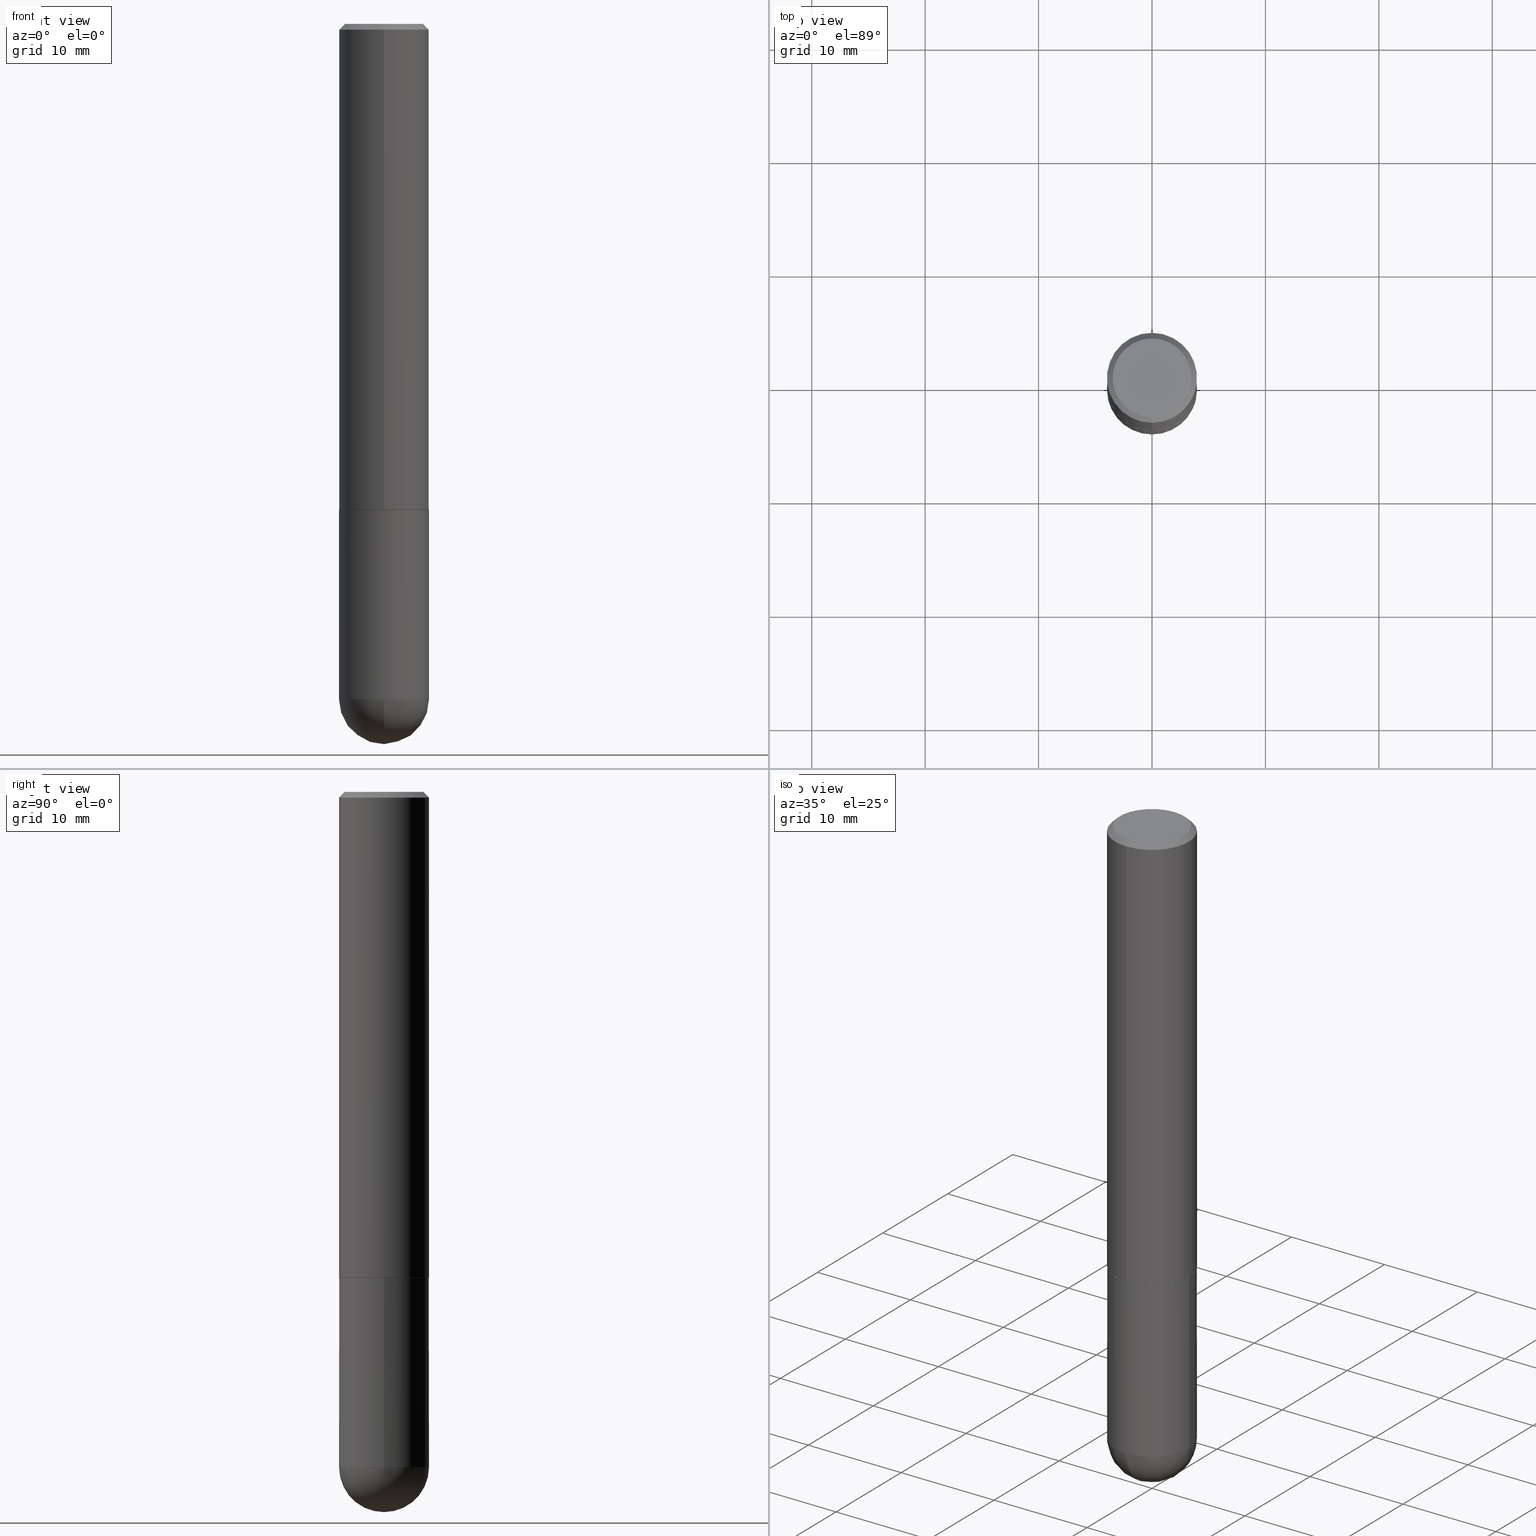
[diagram: canonical four-view strip — front | top / right | iso, engineering-drawing reading convention]
A machine part, canonical four-view strip (front | top / right | iso — engineering-drawing reading convention). The complete STEP part file that produces these views, byte-faithful:
ISO-10303-21;
HEADER;
FILE_DESCRIPTION (( 'STEP AP203' ),
    '1' );
FILE_NAME ('36345.STEP',
    '2024-02-21T18:52:15',
    ( '' ),
    ( '' ),
    'SwSTEP 2.0',
    'SolidWorks 2023',
    '' );
FILE_SCHEMA (( 'CONFIG_CONTROL_DESIGN' ));
ENDSEC;

DATA;
#1 = DIRECTION ( 'NONE',  ( 1.000000000000000000, -6.982962677686269077E-15, 0.000000000000000000 ) ) ;
#2 = VECTOR ( 'NONE', #408, 39.37007874015748143 ) ;
#3 = CIRCLE ( 'NONE', #239, 0.1552499999999999991 ) ;
#4 = PERSON_AND_ORGANIZATION_ROLE ( 'creator' ) ;
#5 = LINE ( 'NONE', #7, #56 ) ;
#6 = CARTESIAN_POINT ( 'NONE',  ( 4.125505876034326327E-29, -5.890129018628388122E-15, -1.687000000000000277 ) ) ;
#7 = CARTESIAN_POINT ( 'NONE',  ( 1.103117597267596553E-15, 0.1552499999999941427, -1.687000000000000943 ) ) ;
#8 = VECTOR ( 'NONE', #211, 39.37007874015748143 ) ;
#9 = CC_DESIGN_APPROVAL ( #16, ( #285 ) ) ;
#10 = CARTESIAN_POINT ( 'NONE',  ( 0.000000000000000000, 0.000000000000000000, 0.000000000000000000 ) ) ;
#11 = CARTESIAN_POINT ( 'NONE',  ( 4.125505876034326327E-29, -5.890129018628388122E-15, -1.687000000000000277 ) ) ;
#12 = DIRECTION ( 'NONE',  ( -6.982962677686265922E-15, -1.000000000000000000, 3.490233802714798958E-15 ) ) ;
#13 = EDGE_LOOP ( 'NONE', ( #250, #93, #341, #132 ) ) ;
#14 = CIRCLE ( 'NONE', #111, 0.1552499999999999991 ) ;
#15 = DIRECTION ( 'NONE',  ( -2.445468806185136597E-29, 3.491481338843145583E-15, 1.000000000000000000 ) ) ;
#16 = APPROVAL ( #215, 'UNSPECIFIED' ) ;
#17 = CARTESIAN_POINT ( 'NONE',  ( -1.071952812151801215E-15, -0.1562500000000000833, -0.01999999999999948694 ) ) ;
#18 = CYLINDRICAL_SURFACE ( 'NONE', #74, 0.1562500000000000000 ) ;
#19 = DIRECTION ( 'NONE',  ( -6.982962677686267499E-15, -1.000000000000000000, 3.490233802714798958E-15 ) ) ;
#20 = CIRCLE ( 'NONE', #188, 0.1562500000000000000 ) ;
#21 = ADVANCED_FACE ( 'NONE', ( #228 ), #94, .T. ) ;
#22 = ORIENTED_EDGE ( 'NONE', *, *, #251, .F. ) ;
#23 = PRODUCT ( '36345', '36345', '', ( #100 ) ) ;
#24 = CARTESIAN_POINT ( 'NONE',  ( -0.1562500000000000000, -5.926421178645850396E-15, -2.343750000000000000 ) ) ;
#25 = VERTEX_POINT ( 'NONE', #202 ) ;
#26 = ORIENTED_EDGE ( 'NONE', *, *, #209, .F. ) ;
#27 = PERSON ( 'UNSPECIFIED', 'UNSPECIFIED', 'UNSPECIFIED', ('UNSPECIFIED'), ('UNSPECIFIED'), ('UNSPECIFIED') ) ;
#28 = EDGE_CURVE ( 'NONE', #200, #314, #173, .T. ) ;
#29 = APPLICATION_PROTOCOL_DEFINITION ( 'international standard', 'config_control_design', 1994, #43 ) ;
#30 = EDGE_LOOP ( 'NONE', ( #300, #412, #130, #401 ) ) ;
#31 = AXIS2_PLACEMENT_3D ( 'NONE', #153, #207, #12 ) ;
#32 = CC_DESIGN_DATE_AND_TIME_ASSIGNMENT ( #259, #102, ( #247 ) ) ;
#33 =( NAMED_UNIT ( * ) SI_UNIT ( $, .STERADIAN. ) SOLID_ANGLE_UNIT ( ) );
#34 = ORIENTED_EDGE ( 'NONE', *, *, #151, .F. ) ;
#35 = CARTESIAN_POINT ( 'NONE',  ( 4.126975505784599064E-29, -5.888024425179867157E-15, -1.687000000000000277 ) ) ;
#36 = PERSON_AND_ORGANIZATION_ROLE ( 'classification_officer' ) ;
#37 = DIRECTION ( 'NONE',  ( -6.982962677686267499E-15, -1.000000000000000000, 3.490233802714798958E-15 ) ) ;
#38 = VECTOR ( 'NONE', #145, 39.37007874015748143 ) ;
#39 = PERSON_AND_ORGANIZATION ( #27, #317 ) ;
#40 = CARTESIAN_POINT ( 'NONE',  ( 4.126975505784599064E-29, -5.888024425179867157E-15, -1.687000000000000277 ) ) ;
#41 = DIRECTION ( 'NONE',  ( -6.982962677686265922E-15, -1.000000000000000000, 3.519288880726909138E-15 ) ) ;
#42 = EDGE_CURVE ( 'NONE', #97, #243, #276, .T. ) ;
#43 = APPLICATION_CONTEXT ( 'configuration controlled 3d designs of mechanical parts and assemblies' ) ;
#44 = SPHERICAL_SURFACE ( 'NONE', #389, 0.1562500000000002498 ) ;
#45 = AXIS2_PLACEMENT_3D ( 'NONE', #139, #266, #294 ) ;
#46 = APPROVAL_PERSON_ORGANIZATION ( #90, #16, #340 ) ;
#47 = CYLINDRICAL_SURFACE ( 'NONE', #269, 0.1562500000000001110 ) ;
#48 = FACE_OUTER_BOUND ( 'NONE', #288, .T. ) ;
#49 = ORIENTED_EDGE ( 'NONE', *, *, #42, .T. ) ;
#50 = DIRECTION ( 'NONE',  ( 6.982962677686265922E-15, 1.000000000000000000, -3.490233802714798958E-15 ) ) ;
#51 = LOCAL_TIME ( 13, 52, 15.00000000000000000, #241 ) ;
#52 = DIRECTION ( 'NONE',  ( -2.446339956007467928E-29, 3.490233802714798564E-15, 1.000000000000000000 ) ) ;
#53 = FACE_OUTER_BOUND ( 'NONE', #13, .T. ) ;
#54 = ADVANCED_FACE ( 'NONE', ( #324 ), #171, .T. ) ;
#55 = ORIENTED_EDGE ( 'NONE', *, *, #365, .F. ) ;
#56 = VECTOR ( 'NONE', #201, 39.37007874015748143 ) ;
#57 = ADVANCED_FACE ( 'NONE', ( #106 ), #44, .T. ) ;
#58 = CARTESIAN_POINT ( 'NONE',  ( 1.110223024625178431E-15, 0.1562499999999943379, -1.686000000000000831 ) ) ;
#59 = ORIENTED_EDGE ( 'NONE', *, *, #332, .T. ) ;
#60 = CARTESIAN_POINT ( 'NONE',  ( 1.091087918388479568E-15, 0.1562499999999999445, -0.02000000000000057981 ) ) ;
#61 = UNCERTAINTY_MEASURE_WITH_UNIT (LENGTH_MEASURE( 1.000000000000000082E-05 ), #155, 'distance_accuracy_value', 'NONE');
#62 = VERTEX_POINT ( 'NONE', #71 ) ;
#63 = EDGE_CURVE ( 'NONE', #187, #349, #5, .T. ) ;
#64 = ORIENTED_EDGE ( 'NONE', *, *, #116, .F. ) ;
#65 = DIRECTION ( 'NONE',  ( -6.982962677686265922E-15, -1.000000000000000000, 3.496765431890251792E-15 ) ) ;
#66 = ORIENTED_EDGE ( 'NONE', *, *, #63, .T. ) ;
#67 = LOCAL_TIME ( 13, 52, 15.00000000000000000, #265 ) ;
#68 = DIRECTION ( 'NONE',  ( 1.000000000000000000, -6.982962677686262766E-15, 0.000000000000000000 ) ) ;
#69 = EDGE_CURVE ( 'NONE', #349, #344, #226, .T. ) ;
#70 = APPROVAL_DATE_TIME ( #227, #369 ) ;
#71 = CARTESIAN_POINT ( 'NONE',  ( 1.091087918388535577E-15, 0.1562499999999916733, -2.343750000000000444 ) ) ;
#72 = EDGE_CURVE ( 'NONE', #25, #125, #296, .T. ) ;
#73 = DIRECTION ( 'NONE',  ( -2.446339956007467928E-29, 3.490233802714798564E-15, 1.000000000000000000 ) ) ;
#74 = AXIS2_PLACEMENT_3D ( 'NONE', #146, #210, #89 ) ;
#75 = DIRECTION ( 'NONE',  ( -2.446339956007467928E-29, 3.490233802714798564E-15, 1.000000000000000000 ) ) ;
#76 = CARTESIAN_POINT ( 'NONE',  ( 3.763361966922717182E-45, -5.369250956535831612E-31, -1.538364264411020755E-16 ) ) ;
#77 = CC_DESIGN_PERSON_AND_ORGANIZATION_ASSIGNMENT ( #196, #345, ( #23 ) ) ;
#78 = CARTESIAN_POINT ( 'NONE',  ( -1.091087918388439336E-15, -0.1562500000000060785, -1.685999999999999721 ) ) ;
#79 = AXIS2_PLACEMENT_3D ( 'NONE', #326, #141, #234 ) ;
#80 = LOCAL_TIME ( 13, 52, 15.00000000000000000, #343 ) ;
#81 = FACE_OUTER_BOUND ( 'NONE', #383, .T. ) ;
#82 = CALENDAR_DATE ( 2024, 21, 2 ) ;
#83 = DIRECTION ( 'NONE',  ( -2.446339956007467928E-29, 3.490233802714798564E-15, 1.000000000000000000 ) ) ;
#84 = CARTESIAN_POINT ( 'NONE',  ( 1.021258291611617256E-15, 0.1362500000000001765, -6.293807820609940159E-16 ) ) ;
#85 = EDGE_LOOP ( 'NONE', ( #258, #55 ) ) ;
#86 = CLOSED_SHELL ( 'NONE', ( #222, #57, #175, #140, #54 ) ) ;
#87 = CONICAL_SURFACE ( 'NONE', #254, 0.1562500000000000000, 0.7853981633974468357 ) ;
#88 = CC_DESIGN_SECURITY_CLASSIFICATION ( #247, ( #240 ) ) ;
#89 = DIRECTION ( 'NONE',  ( 1.000000000000000000, -6.982962677686266711E-15, 4.876176775795936353E-29 ) ) ;
#90 = PERSON_AND_ORGANIZATION ( #27, #317 ) ;
#91 = EDGE_CURVE ( 'NONE', #372, #125, #170, .T. ) ;
#92 = CARTESIAN_POINT ( 'NONE',  ( 4.126975505784599064E-29, -5.888024425179867157E-15, -1.687000000000000277 ) ) ;
#93 = ORIENTED_EDGE ( 'NONE', *, *, #251, .T. ) ;
#94 = CONICAL_SURFACE ( 'NONE', #135, 0.1552499999999999991, 0.7853981633975165577 ) ;
#95 = CALENDAR_DATE ( 2024, 21, 2 ) ;
#96 =( GEOMETRIC_REPRESENTATION_CONTEXT ( 3 ) GLOBAL_UNCERTAINTY_ASSIGNED_CONTEXT ( ( #61 ) ) GLOBAL_UNIT_ASSIGNED_CONTEXT ( ( #155, #220, #33 ) ) REPRESENTATION_CONTEXT ( 'NONE', 'WORKASPACE' ) );
#97 = VERTEX_POINT ( 'NONE', #293 ) ;
#98 = LENGTH_MEASURE_WITH_UNIT ( LENGTH_MEASURE( 0.02539999999999999897 ), #129 );
#99 = EDGE_LOOP ( 'NONE', ( #403, #159 ) ) ;
#100 = MECHANICAL_CONTEXT ( 'NONE', #43, 'mechanical' ) ;
#101 = ORIENTED_EDGE ( 'NONE', *, *, #384, .F. ) ;
#102 = DATE_TIME_ROLE ( 'classification_date' ) ;
#103 = EDGE_LOOP ( 'NONE', ( #197, #380, #378, #156, #26 ) ) ;
#104 = CIRCLE ( 'NONE', #208, 0.1562500000000002220 ) ;
#105 = APPROVAL_DATE_TIME ( #385, #184 ) ;
#106 = FACE_OUTER_BOUND ( 'NONE', #194, .T. ) ;
#107 = CC_DESIGN_PERSON_AND_ORGANIZATION_ASSIGNMENT ( #124, #373, ( #285 ) ) ;
#108 = CARTESIAN_POINT ( 'NONE',  ( -1.084104955710751547E-15, -0.1552500000000058833, -1.686999999999999833 ) ) ;
#109 = EDGE_CURVE ( 'NONE', #219, #393, #218, .T. ) ;
#110 = CARTESIAN_POINT ( 'NONE',  ( 1.091087918388520392E-15, 0.1562499999999941436, -1.687000000000000943 ) ) ;
#111 = AXIS2_PLACEMENT_3D ( 'NONE', #263, #73, #319 ) ;
#112 = DIRECTION ( 'NONE',  ( 2.438088387897960049E-29, -3.491481338843145188E-15, -1.000000000000000000 ) ) ;
#113 = DIRECTION ( 'NONE',  ( 1.000000000000000000, -6.982962677686269077E-15, 0.000000000000000000 ) ) ;
#114 = DIRECTION ( 'NONE',  ( -7.105427357601000281E-15, -1.000000000000000000, 0.000000000000000000 ) ) ;
#115 = AXIS2_PLACEMENT_3D ( 'NONE', #358, #360, #50 ) ;
#116 = EDGE_CURVE ( 'NONE', #314, #344, #213, .T. ) ;
#117 = DIRECTION ( 'NONE',  ( 1.000000000000000000, -6.982962677686265922E-15, 4.883557194083112340E-29 ) ) ;
#118 = DIRECTION ( 'NONE',  ( -4.937700262164884886E-15, -0.7071067811865933139, 0.7071067811865017205 ) ) ;
#119 = ORIENTED_EDGE ( 'NONE', *, *, #69, .F. ) ;
#120 = DIRECTION ( 'NONE',  ( -6.982962677686265922E-15, -1.000000000000000000, 3.490233802714798958E-15 ) ) ;
#121 = DIRECTION ( 'NONE',  ( 2.446339956007467928E-29, -3.490233802714798564E-15, -1.000000000000000000 ) ) ;
#122 = CARTESIAN_POINT ( 'NONE',  ( 0.1562500000000000000, -8.127732121659486109E-15, -2.343750000000000000 ) ) ;
#123 = ORIENTED_EDGE ( 'NONE', *, *, #264, .T. ) ;
#124 = PERSON_AND_ORGANIZATION ( #27, #317 ) ;
#125 = VERTEX_POINT ( 'NONE', #387 ) ;
#126 = AXIS2_PLACEMENT_3D ( 'NONE', #273, #392, #279 ) ;
#127 = DIRECTION ( 'NONE',  ( 0.000000000000000000, 0.000000000000000000, 1.000000000000000000 ) ) ;
#128 = VERTEX_POINT ( 'NONE', #108 ) ;
#129 =( LENGTH_UNIT ( ) NAMED_UNIT ( * ) SI_UNIT ( $, .METRE. ) );
#130 = ORIENTED_EDGE ( 'NONE', *, *, #116, .T. ) ;
#131 = CALENDAR_DATE ( 2024, 21, 2 ) ;
#132 = ORIENTED_EDGE ( 'NONE', *, *, #109, .F. ) ;
#133 = EDGE_CURVE ( 'NONE', #128, #187, #14, .T. ) ;
#134 = PLANE ( 'NONE',  #337 ) ;
#135 = AXIS2_PLACEMENT_3D ( 'NONE', #40, #230, #390 ) ;
#136 = APPROVAL_PERSON_ORGANIZATION ( #168, #184, #229 ) ;
#137 = EDGE_CURVE ( 'NONE', #372, #219, #322, .T. ) ;
#138 = APPROVAL_STATUS ( 'not_yet_approved' ) ;
#139 = CARTESIAN_POINT ( 'NONE',  ( 5.731567514496413899E-29, -8.183159387913622595E-15, -2.343750000000000000 ) ) ;
#140 = ADVANCED_FACE ( 'NONE', ( #268 ), #134, .F. ) ;
#141 = DIRECTION ( 'NONE',  ( -2.446339956007467928E-29, 3.490233802714798564E-15, 1.000000000000000000 ) ) ;
#142 = DIRECTION ( 'NONE',  ( -2.446339956007467928E-29, 3.490233802714798564E-15, 1.000000000000000000 ) ) ;
#143 = VECTOR ( 'NONE', #118, 39.37007874015748143 ) ;
#144 = AXIS2_PLACEMENT_3D ( 'NONE', #377, #121, #199 ) ;
#145 = DIRECTION ( 'NONE',  ( -2.445468806185136877E-29, 3.491481338843145188E-15, 1.000000000000000000 ) ) ;
#146 = CARTESIAN_POINT ( 'NONE',  ( 0.000000000000000000, 0.000000000000000000, 0.000000000000000000 ) ) ;
#147 = CARTESIAN_POINT ( 'NONE',  ( 5.400447736582527652E-29, -8.657341756053672891E-15, -2.343750000000000000 ) ) ;
#148 = ADVANCED_FACE ( 'NONE', ( #272 ), #302, .T. ) ;
#149 = MANIFOLD_SOLID_BREP ( 'Body-Move/Copy2[1]', #86 ) ;
#150 = LINE ( 'NONE', #396, #143 ) ;
#151 = EDGE_CURVE ( 'NONE', #344, #314, #367, .T. ) ;
#152 = CYLINDRICAL_SURFACE ( 'NONE', #261, 0.1562500000000001110 ) ;
#153 = CARTESIAN_POINT ( 'NONE',  ( 4.126975505784599064E-29, -5.888024425179867157E-15, -1.687000000000000277 ) ) ;
#154 = AXIS2_PLACEMENT_3D ( 'NONE', #388, #203, #68 ) ;
#155 =( CONVERSION_BASED_UNIT ( 'INCH', #98 ) LENGTH_UNIT ( ) NAMED_UNIT ( #165 ) );
#156 = ORIENTED_EDGE ( 'NONE', *, *, #195, .T. ) ;
#157 = DATE_AND_TIME ( #309, #271 ) ;
#158 = EDGE_LOOP ( 'NONE', ( #163, #66, #255, #274 ) ) ;
#159 = ORIENTED_EDGE ( 'NONE', *, *, #209, .T. ) ;
#160 = ADVANCED_FACE ( 'NONE', ( #357 ), #152, .T. ) ;
#161 = AXIS2_PLACEMENT_3D ( 'NONE', #172, #142, #270 ) ;
#162 = AXIS2_PLACEMENT_3D ( 'NONE', #405, #216, #65 ) ;
#163 = ORIENTED_EDGE ( 'NONE', *, *, #133, .T. ) ;
#164 = EDGE_LOOP ( 'NONE', ( #123, #260, #217, #363, #59 ) ) ;
#165 = DIMENSIONAL_EXPONENTS ( 1.000000000000000000, 0.000000000000000000, 0.000000000000000000, 0.000000000000000000, 0.000000000000000000, 0.000000000000000000, 0.000000000000000000 ) ;
#166 = COORDINATED_UNIVERSAL_TIME_OFFSET ( 5, 0, .BEHIND. ) ;
#167 = DIRECTION ( 'NONE',  ( 6.982962677686265922E-15, 1.000000000000000000, -3.496765431890251398E-15 ) ) ;
#168 = PERSON_AND_ORGANIZATION ( #27, #317 ) ;
#169 = CIRCLE ( 'NONE', #330, 0.1562500000000002498 ) ;
#170 = LINE ( 'NONE', #297, #38 ) ;
#171 = CYLINDRICAL_SURFACE ( 'NONE', #375, 0.1562500000000000000 ) ;
#172 = CARTESIAN_POINT ( 'NONE',  ( 4.892679912014943914E-31, -6.980467605429607481E-17, -0.02000000000000003511 ) ) ;
#173 = LINE ( 'NONE', #329, #246 ) ;
#174 = AXIS2_PLACEMENT_3D ( 'NONE', #6, #351, #1 ) ;
#175 = ADVANCED_FACE ( 'NONE', ( #53 ), #299, .T. ) ;
#176 = DIRECTION ( 'NONE',  ( -2.446339956007467928E-29, 3.490233802714798564E-15, 1.000000000000000000 ) ) ;
#177 = EDGE_LOOP ( 'NONE', ( #312, #282, #223, #101 ) ) ;
#178 = CARTESIAN_POINT ( 'NONE',  ( 0.000000000000000000, 0.000000000000000000, 0.000000000000000000 ) ) ;
#179 = EDGE_CURVE ( 'NONE', #409, #219, #198, .T. ) ;
#180 = DIRECTION ( 'NONE',  ( -6.982962677686265922E-15, -1.000000000000000000, 3.490233802714798958E-15 ) ) ;
#181 = CIRCLE ( 'NONE', #316, 0.1562500000000000000 ) ;
#182 = ADVANCED_FACE ( 'NONE', ( #301 ), #245, .F. ) ;
#183 = CARTESIAN_POINT ( 'NONE',  ( 0.000000000000000000, 0.000000000000000000, 0.000000000000000000 ) ) ;
#184 = APPROVAL ( #325, 'UNSPECIFIED' ) ;
#185 = CARTESIAN_POINT ( 'NONE',  ( 1.106670310946397846E-15, 0.1552499999999941427, -1.687000000000000943 ) ) ;
#186 = FACE_OUTER_BOUND ( 'NONE', #30, .T. ) ;
#187 = VERTEX_POINT ( 'NONE', #185 ) ;
#188 = AXIS2_PLACEMENT_3D ( 'NONE', #397, #371, #193 ) ;
#189 = CC_DESIGN_APPROVAL ( #369, ( #247 ) ) ;
#190 = CARTESIAN_POINT ( 'NONE',  ( -1.071952812151801215E-15, -0.1562500000000000833, -0.01999999999999948694 ) ) ;
#191 = ADVANCED_FACE ( 'NONE', ( #48 ), #87, .T. ) ;
#192 = ORIENTED_EDGE ( 'NONE', *, *, #137, .F. ) ;
#193 = DIRECTION ( 'NONE',  ( 1.000000000000000000, -6.982962677686262766E-15, 0.000000000000000000 ) ) ;
#194 = EDGE_LOOP ( 'NONE', ( #22, #277, #192, #290 ) ) ;
#195 = EDGE_CURVE ( 'NONE', #393, #25, #275, .T. ) ;
#196 = PERSON_AND_ORGANIZATION ( #27, #317 ) ;
#197 = ORIENTED_EDGE ( 'NONE', *, *, #91, .F. ) ;
#198 = CIRCLE ( 'NONE', #291, 0.1562500000000002498 ) ;
#199 = DIRECTION ( 'NONE',  ( 6.982962677686265133E-15, 1.000000000000000000, -3.496765431890256920E-15 ) ) ;
#200 = VERTEX_POINT ( 'NONE', #78 ) ;
#201 = DIRECTION ( 'NONE',  ( 5.024295867788404755E-15, 0.7071067811865981989, 0.7071067811864968355 ) ) ;
#202 = CARTESIAN_POINT ( 'NONE',  ( 0.1562500000000000000, -6.981216937016868084E-15, -1.687000000000000277 ) ) ;
#203 = DIRECTION ( 'NONE',  ( -2.445468806185136597E-29, 3.491481338843145583E-15, 1.000000000000000000 ) ) ;
#204 = ADVANCED_BREP_SHAPE_REPRESENTATION ( '36345', ( #149, #280, #233 ), #96 ) ;
#205 = DIRECTION ( 'NONE',  ( -1.000000000000000000, 6.982962677686265922E-15, -4.883557194083112340E-29 ) ) ;
#206 = DIRECTION ( 'NONE',  ( -2.446339956007467648E-29, 3.490233802714798958E-15, 1.000000000000000000 ) ) ;
#207 = DIRECTION ( 'NONE',  ( -2.446339956007467368E-29, 3.490233802714798958E-15, 1.000000000000000000 ) ) ;
#208 = AXIS2_PLACEMENT_3D ( 'NONE', #336, #52, #303 ) ;
#209 = EDGE_CURVE ( 'NONE', #125, #25, #399, .T. ) ;
#210 = DIRECTION ( 'NONE',  ( -2.445468806185136597E-29, 3.491481338843145583E-15, 1.000000000000000000 ) ) ;
#211 = DIRECTION ( 'NONE',  ( 4.937700262164540154E-15, 0.7071067811865440200, -0.7071067811865510144 ) ) ;
#212 = PRODUCT_RELATED_PRODUCT_CATEGORY ( 'detail', '', ( #23 ) ) ;
#213 = CIRCLE ( 'NONE', #79, 0.1562500000000000000 ) ;
#214 = CARTESIAN_POINT ( 'NONE',  ( 0.1562500000000000000, -1.091087918388479174E-15, 7.619026212181150377E-30 ) ) ;
#215 = APPROVAL_STATUS ( 'not_yet_approved' ) ;
#216 = DIRECTION ( 'NONE',  ( -2.446339956007467928E-29, 3.490233802714798564E-15, 1.000000000000000000 ) ) ;
#217 = ORIENTED_EDGE ( 'NONE', *, *, #72, .F. ) ;
#218 = CIRCLE ( 'NONE', #45, 0.1562500000000000000 ) ;
#219 = VERTEX_POINT ( 'NONE', #237 ) ;
#220 =( NAMED_UNIT ( * ) PLANE_ANGLE_UNIT ( ) SI_UNIT ( $, .RADIAN. ) );
#221 = ORIENTED_EDGE ( 'NONE', *, *, #151, .T. ) ;
#222 = ADVANCED_FACE ( 'NONE', ( #333 ), #18, .T. ) ;
#223 = ORIENTED_EDGE ( 'NONE', *, *, #267, .T. ) ;
#224 = AXIS2_PLACEMENT_3D ( 'NONE', #11, #366, #113 ) ;
#225 = PERSON_AND_ORGANIZATION ( #27, #317 ) ;
#226 = LINE ( 'NONE', #321, #407 ) ;
#227 = DATE_AND_TIME ( #131, #67 ) ;
#228 = FACE_OUTER_BOUND ( 'NONE', #158, .T. ) ;
#229 = APPROVAL_ROLE ( '' ) ;
#230 = DIRECTION ( 'NONE',  ( -2.446339956007467928E-29, 3.490233802714798564E-15, 1.000000000000000000 ) ) ;
#231 = CC_DESIGN_PERSON_AND_ORGANIZATION_ASSIGNMENT ( #410, #289, ( #240 ) ) ;
#232 = DIRECTION ( 'NONE',  ( -2.446339956007467928E-29, 3.490233802714798564E-15, 1.000000000000000000 ) ) ;
#233 = AXIS2_PLACEMENT_3D ( 'NONE', #398, #127, #370 ) ;
#234 = DIRECTION ( 'NONE',  ( -6.982962677686265133E-15, -1.000000000000000000, 3.496765431890256920E-15 ) ) ;
#235 = ADVANCED_FACE ( 'NONE', ( #339 ), #236, .F. ) ;
#236 = PLANE ( 'NONE',  #115 ) ;
#237 = CARTESIAN_POINT ( 'NONE',  ( -1.110223024625101517E-15, -0.1562500000000085487, -2.343749999999999556 ) ) ;
#238 = CIRCLE ( 'NONE', #162, 0.1562500000000002220 ) ;
#239 = AXIS2_PLACEMENT_3D ( 'NONE', #92, #348, #252 ) ;
#240 = PRODUCT_DEFINITION_FORMATION_WITH_SPECIFIED_SOURCE ( 'ANY', '', #23, .NOT_KNOWN. ) ;
#241 = COORDINATED_UNIVERSAL_TIME_OFFSET ( 5, 0, .BEHIND. ) ;
#242 = CARTESIAN_POINT ( 'NONE',  ( 4.892679912014943914E-31, -6.980467605429607481E-17, -0.02000000000000003511 ) ) ;
#243 = VERTEX_POINT ( 'NONE', #84 ) ;
#244 = LINE ( 'NONE', #364, #8 ) ;
#245 = PLANE ( 'NONE',  #31 ) ;
#246 = VECTOR ( 'NONE', #295, 39.37007874015748143 ) ;
#247 = SECURITY_CLASSIFICATION ( '', '', #334 ) ;
#248 = PRODUCT_DEFINITION_SHAPE ( 'NONE', 'NONE',  #285 ) ;
#249 = APPROVAL_DATE_TIME ( #157, #16 ) ;
#250 = ORIENTED_EDGE ( 'NONE', *, *, #179, .F. ) ;
#251 = EDGE_CURVE ( 'NONE', #409, #62, #169, .T. ) ;
#252 = DIRECTION ( 'NONE',  ( -6.982962677686265922E-15, -1.000000000000000000, 3.519288880726909138E-15 ) ) ;
#253 = ORIENTED_EDGE ( 'NONE', *, *, #384, .T. ) ;
#254 = AXIS2_PLACEMENT_3D ( 'NONE', #242, #305, #298 ) ;
#255 = ORIENTED_EDGE ( 'NONE', *, *, #320, .F. ) ;
#256 = CARTESIAN_POINT ( 'NONE',  ( 3.763361966922717182E-45, -5.369250956535831612E-31, -1.538364264411020755E-16 ) ) ;
#257 = ADVANCED_FACE ( 'NONE', ( #81 ), #47, .T. ) ;
#258 = ORIENTED_EDGE ( 'NONE', *, *, #133, .F. ) ;
#259 = DATE_AND_TIME ( #350, #51 ) ;
#260 = ORIENTED_EDGE ( 'NONE', *, *, #91, .T. ) ;
#261 = AXIS2_PLACEMENT_3D ( 'NONE', #183, #176, #120 ) ;
#262 = APPROVAL_PERSON_ORGANIZATION ( #39, #369, #361 ) ;
#263 = CARTESIAN_POINT ( 'NONE',  ( 4.126975505784599064E-29, -5.888024425179867157E-15, -1.687000000000000277 ) ) ;
#264 = EDGE_CURVE ( 'NONE', #62, #372, #181, .T. ) ;
#265 = COORDINATED_UNIVERSAL_TIME_OFFSET ( 5, 0, .BEHIND. ) ;
#266 = DIRECTION ( 'NONE',  ( -2.445468806185136597E-29, 3.491481338843145583E-15, 1.000000000000000000 ) ) ;
#267 = EDGE_CURVE ( 'NONE', #128, #200, #150, .T. ) ;
#268 = FACE_OUTER_BOUND ( 'NONE', #99, .T. ) ;
#269 = AXIS2_PLACEMENT_3D ( 'NONE', #178, #83, #180 ) ;
#270 = DIRECTION ( 'NONE',  ( -6.982962677686265133E-15, -1.000000000000000000, 3.496765431890256920E-15 ) ) ;
#271 = LOCAL_TIME ( 13, 52, 15.00000000000000000, #400 ) ;
#272 = FACE_OUTER_BOUND ( 'NONE', #177, .T. ) ;
#273 = CARTESIAN_POINT ( 'NONE',  ( 5.400447736582527652E-29, -8.657341756053672891E-15, -2.343750000000000000 ) ) ;
#274 = ORIENTED_EDGE ( 'NONE', *, *, #267, .F. ) ;
#275 = LINE ( 'NONE', #214, #394 ) ;
#276 = CIRCLE ( 'NONE', #359, 0.1362500000000001765 ) ;
#277 = ORIENTED_EDGE ( 'NONE', *, *, #179, .T. ) ;
#278 = DIRECTION ( 'NONE',  ( 1.000000000000000000, -6.982962677686262766E-15, 0.000000000000000000 ) ) ;
#279 = DIRECTION ( 'NONE',  ( 6.982962677686265922E-15, 1.000000000000000000, -3.496765431890251398E-15 ) ) ;
#280 = MANIFOLD_SOLID_BREP ( 'Body-Move/Copy2[2]', #315 ) ;
#281 = DIRECTION ( 'NONE',  ( -1.000000000000000000, 7.105427357601001070E-15, -4.926315508542082329E-29 ) ) ;
#282 = ORIENTED_EDGE ( 'NONE', *, *, #365, .T. ) ;
#283 = EDGE_LOOP ( 'NONE', ( #284, #374, #64, #342 ) ) ;
#284 = ORIENTED_EDGE ( 'NONE', *, *, #320, .T. ) ;
#285 = PRODUCT_DEFINITION ( 'UNKNOWN', '', #240, #327 ) ;
#286 = ORIENTED_EDGE ( 'NONE', *, *, #404, .T. ) ;
#287 = DATE_AND_TIME ( #95, #80 ) ;
#288 = EDGE_LOOP ( 'NONE', ( #318, #406, #308, #221 ) ) ;
#289 = PERSON_AND_ORGANIZATION_ROLE ( 'design_supplier' ) ;
#290 = ORIENTED_EDGE ( 'NONE', *, *, #264, .F. ) ;
#291 = AXIS2_PLACEMENT_3D ( 'NONE', #147, #281, #114 ) ;
#292 = DATE_TIME_ROLE ( 'creation_date' ) ;
#293 = CARTESIAN_POINT ( 'NONE',  ( -1.003347832174086870E-15, -0.1362500000000001765, 3.217079291787898648E-16 ) ) ;
#294 = DIRECTION ( 'NONE',  ( 1.000000000000000000, -6.982962677686262766E-15, 0.000000000000000000 ) ) ;
#295 = DIRECTION ( 'NONE',  ( -2.446339956007467648E-29, 3.490233802714798958E-15, 1.000000000000000000 ) ) ;
#296 = CIRCLE ( 'NONE', #174, 0.1562500000000000000 ) ;
#297 = CARTESIAN_POINT ( 'NONE',  ( -0.1562500000000000000, 1.110223024625156540E-15, -7.685836078523291160E-30 ) ) ;
#298 = DIRECTION ( 'NONE',  ( 6.982962677686265133E-15, 1.000000000000000000, -3.496765431890256920E-15 ) ) ;
#299 = SPHERICAL_SURFACE ( 'NONE', #126, 0.1562500000000002498 ) ;
#300 = ORIENTED_EDGE ( 'NONE', *, *, #42, .F. ) ;
#301 = FACE_OUTER_BOUND ( 'NONE', #85, .T. ) ;
#302 = CONICAL_SURFACE ( 'NONE', #354, 0.1552499999999999991, 0.7853981633975165577 ) ;
#303 = DIRECTION ( 'NONE',  ( -6.982962677686265922E-15, -1.000000000000000000, 3.496765431890251792E-15 ) ) ;
#304 = EDGE_CURVE ( 'NONE', #243, #344, #244, .T. ) ;
#305 = DIRECTION ( 'NONE',  ( 2.446339956007467928E-29, -3.490233802714798564E-15, -1.000000000000000000 ) ) ;
#306 = CC_DESIGN_PERSON_AND_ORGANIZATION_ASSIGNMENT ( #353, #36, ( #247 ) ) ;
#307 = DIRECTION ( 'NONE',  ( -2.446339956007467928E-29, 3.490233802714798564E-15, 1.000000000000000000 ) ) ;
#308 = ORIENTED_EDGE ( 'NONE', *, *, #304, .T. ) ;
#309 = CALENDAR_DATE ( 2024, 21, 2 ) ;
#310 = EDGE_LOOP ( 'NONE', ( #286, #49 ) ) ;
#311 = LINE ( 'NONE', #190, #2 ) ;
#312 = ORIENTED_EDGE ( 'NONE', *, *, #63, .F. ) ;
#313 = APPLICATION_PROTOCOL_DEFINITION ( 'international standard', 'config_control_design', 1994, #347 ) ;
#314 = VERTEX_POINT ( 'NONE', #17 ) ;
#315 = CLOSED_SHELL ( 'NONE', ( #21, #160, #402, #191, #257, #148, #182, #235 ) ) ;
#316 = AXIS2_PLACEMENT_3D ( 'NONE', #335, #15, #278 ) ;
#317 = ORGANIZATION ( 'UNSPECIFIED', 'UNSPECIFIED', '' ) ;
#318 = ORIENTED_EDGE ( 'NONE', *, *, #381, .F. ) ;
#319 = DIRECTION ( 'NONE',  ( -6.982962677686265922E-15, -1.000000000000000000, 3.519288880726909138E-15 ) ) ;
#320 = EDGE_CURVE ( 'NONE', #200, #349, #104, .T. ) ;
#321 = CARTESIAN_POINT ( 'NONE',  ( 1.110223024625157132E-15, 0.1562500000000001110, -5.453490316741877193E-16 ) ) ;
#322 = CIRCLE ( 'NONE', #154, 0.1562500000000000000 ) ;
#323 = CC_DESIGN_APPROVAL ( #184, ( #240 ) ) ;
#324 = FACE_OUTER_BOUND ( 'NONE', #103, .T. ) ;
#325 = APPROVAL_STATUS ( 'not_yet_approved' ) ;
#326 = CARTESIAN_POINT ( 'NONE',  ( 4.892679912014943914E-31, -6.980467605429607481E-17, -0.02000000000000003511 ) ) ;
#327 = DESIGN_CONTEXT ( 'detailed design', #347, 'design' ) ;
#328 = CC_DESIGN_PERSON_AND_ORGANIZATION_ASSIGNMENT ( #225, #4, ( #240 ) ) ;
#329 = CARTESIAN_POINT ( 'NONE',  ( -1.091087918388479765E-15, -0.1562500000000001110, 5.453490316741877193E-16 ) ) ;
#330 = AXIS2_PLACEMENT_3D ( 'NONE', #331, #117, #362 ) ;
#331 = CARTESIAN_POINT ( 'NONE',  ( 5.400447736582527652E-29, -8.657341756053672891E-15, -2.343750000000000000 ) ) ;
#332 = EDGE_CURVE ( 'NONE', #393, #62, #20, .T. ) ;
#333 = FACE_OUTER_BOUND ( 'NONE', #164, .T. ) ;
#334 = SECURITY_CLASSIFICATION_LEVEL ( 'unclassified' ) ;
#335 = CARTESIAN_POINT ( 'NONE',  ( 5.731567514496413899E-29, -8.183159387913622595E-15, -2.343750000000000000 ) ) ;
#336 = CARTESIAN_POINT ( 'NONE',  ( 4.124529165828591356E-29, -5.884534191377150994E-15, -1.686000000000000165 ) ) ;
#337 = AXIS2_PLACEMENT_3D ( 'NONE', #110, #112, #386 ) ;
#338 = CONICAL_SURFACE ( 'NONE', #144, 0.1562500000000000000, 0.7853981633974468357 ) ;
#339 = FACE_OUTER_BOUND ( 'NONE', #310, .T. ) ;
#340 = APPROVAL_ROLE ( '' ) ;
#341 = ORIENTED_EDGE ( 'NONE', *, *, #332, .F. ) ;
#342 = ORIENTED_EDGE ( 'NONE', *, *, #28, .F. ) ;
#343 = COORDINATED_UNIVERSAL_TIME_OFFSET ( 5, 0, .BEHIND. ) ;
#344 = VERTEX_POINT ( 'NONE', #60 ) ;
#345 = PERSON_AND_ORGANIZATION_ROLE ( 'design_owner' ) ;
#346 = ORIENTED_EDGE ( 'NONE', *, *, #28, .T. ) ;
#347 = APPLICATION_CONTEXT ( 'configuration controlled 3d designs of mechanical parts and assemblies' ) ;
#348 = DIRECTION ( 'NONE',  ( -2.446339956007467928E-29, 3.490233802714798564E-15, 1.000000000000000000 ) ) ;
#349 = VERTEX_POINT ( 'NONE', #58 ) ;
#350 = CALENDAR_DATE ( 2024, 21, 2 ) ;
#351 = DIRECTION ( 'NONE',  ( -2.445468806185136597E-29, 3.491481338843145583E-15, 1.000000000000000000 ) ) ;
#352 = CARTESIAN_POINT ( 'NONE',  ( 5.400447736582527652E-29, -8.657341756053672891E-15, -2.343750000000000000 ) ) ;
#353 = PERSON_AND_ORGANIZATION ( #27, #317 ) ;
#354 = AXIS2_PLACEMENT_3D ( 'NONE', #35, #75, #41 ) ;
#355 = AXIS2_PLACEMENT_3D ( 'NONE', #256, #307, #19 ) ;
#356 = DIRECTION ( 'NONE',  ( -2.445468806185136597E-29, 3.491481338843145583E-15, 1.000000000000000000 ) ) ;
#357 = FACE_OUTER_BOUND ( 'NONE', #283, .T. ) ;
#358 = CARTESIAN_POINT ( 'NONE',  ( 9.514286648347551409E-16, 0.1362500000000001765, -5.524625688404430397E-16 ) ) ;
#359 = AXIS2_PLACEMENT_3D ( 'NONE', #76, #232, #37 ) ;
#360 = DIRECTION ( 'NONE',  ( 2.446339956007467368E-29, -3.490233802714798958E-15, -1.000000000000000000 ) ) ;
#361 = APPROVAL_ROLE ( '' ) ;
#362 = DIRECTION ( 'NONE',  ( 6.982962677686265922E-15, 1.000000000000000000, 0.000000000000000000 ) ) ;
#363 = ORIENTED_EDGE ( 'NONE', *, *, #195, .F. ) ;
#364 = CARTESIAN_POINT ( 'NONE',  ( 1.091087918388479568E-15, 0.1562499999999999445, -0.02000000000000057981 ) ) ;
#365 = EDGE_CURVE ( 'NONE', #187, #128, #3, .T. ) ;
#366 = DIRECTION ( 'NONE',  ( -2.445468806185136597E-29, 3.491481338843145583E-15, 1.000000000000000000 ) ) ;
#367 = CIRCLE ( 'NONE', #161, 0.1562500000000000000 ) ;
#368 = CIRCLE ( 'NONE', #355, 0.1362500000000001765 ) ;
#369 = APPROVAL ( #138, 'UNSPECIFIED' ) ;
#370 = DIRECTION ( 'NONE',  ( 1.000000000000000000, 0.000000000000000000, 0.000000000000000000 ) ) ;
#371 = DIRECTION ( 'NONE',  ( -2.445468806185136597E-29, 3.491481338843145583E-15, 1.000000000000000000 ) ) ;
#372 = VERTEX_POINT ( 'NONE', #24 ) ;
#373 = PERSON_AND_ORGANIZATION_ROLE ( 'creator' ) ;
#374 = ORIENTED_EDGE ( 'NONE', *, *, #69, .T. ) ;
#375 = AXIS2_PLACEMENT_3D ( 'NONE', #10, #356, #391 ) ;
#376 = LOCAL_TIME ( 13, 52, 15.00000000000000000, #166 ) ;
#377 = CARTESIAN_POINT ( 'NONE',  ( 4.892679912014943914E-31, -6.980467605429607481E-17, -0.02000000000000003511 ) ) ;
#378 = ORIENTED_EDGE ( 'NONE', *, *, #109, .T. ) ;
#379 = CARTESIAN_POINT ( 'NONE',  ( 5.789233224183170584E-29, -9.193318162129576161E-15, -2.500000000000000000 ) ) ;
#380 = ORIENTED_EDGE ( 'NONE', *, *, #137, .T. ) ;
#381 = EDGE_CURVE ( 'NONE', #97, #314, #311, .T. ) ;
#382 = SHAPE_DEFINITION_REPRESENTATION ( #248, #204 ) ;
#383 = EDGE_LOOP ( 'NONE', ( #119, #253, #346, #34 ) ) ;
#384 = EDGE_CURVE ( 'NONE', #349, #200, #238, .T. ) ;
#385 = DATE_AND_TIME ( #82, #376 ) ;
#386 = DIRECTION ( 'NONE',  ( -1.000000000000000000, 6.982962677686265922E-15, -4.876176775795935793E-29 ) ) ;
#387 = CARTESIAN_POINT ( 'NONE',  ( -0.1562500000000000000, -5.926421178645848818E-15, -1.687000000000000277 ) ) ;
#388 = CARTESIAN_POINT ( 'NONE',  ( 5.731567514496413899E-29, -8.183159387913622595E-15, -2.343750000000000000 ) ) ;
#389 = AXIS2_PLACEMENT_3D ( 'NONE', #352, #205, #167 ) ;
#390 = DIRECTION ( 'NONE',  ( -6.982962677686265922E-15, -1.000000000000000000, 3.519288880726909138E-15 ) ) ;
#391 = DIRECTION ( 'NONE',  ( 1.000000000000000000, -6.982962677686266711E-15, 4.876176775795936353E-29 ) ) ;
#392 = DIRECTION ( 'NONE',  ( -1.000000000000000000, 6.982962677686265922E-15, -4.883557194083112340E-29 ) ) ;
#393 = VERTEX_POINT ( 'NONE', #122 ) ;
#394 = VECTOR ( 'NONE', #395, 39.37007874015748143 ) ;
#395 = DIRECTION ( 'NONE',  ( -2.445468806185136877E-29, 3.491481338843145188E-15, 1.000000000000000000 ) ) ;
#396 = CARTESIAN_POINT ( 'NONE',  ( -1.084104955710751547E-15, -0.1552500000000058833, -1.686999999999999833 ) ) ;
#397 = CARTESIAN_POINT ( 'NONE',  ( 5.731567514496413899E-29, -8.183159387913622595E-15, -2.343750000000000000 ) ) ;
#398 = CARTESIAN_POINT ( 'NONE',  ( 0.000000000000000000, 0.000000000000000000, 0.000000000000000000 ) ) ;
#399 = CIRCLE ( 'NONE', #224, 0.1562500000000000000 ) ;
#400 = COORDINATED_UNIVERSAL_TIME_OFFSET ( 5, 0, .BEHIND. ) ;
#401 = ORIENTED_EDGE ( 'NONE', *, *, #304, .F. ) ;
#402 = ADVANCED_FACE ( 'NONE', ( #186 ), #338, .T. ) ;
#403 = ORIENTED_EDGE ( 'NONE', *, *, #72, .T. ) ;
#404 = EDGE_CURVE ( 'NONE', #243, #97, #368, .T. ) ;
#405 = CARTESIAN_POINT ( 'NONE',  ( 4.124529165828591356E-29, -5.884534191377150994E-15, -1.686000000000000165 ) ) ;
#406 = ORIENTED_EDGE ( 'NONE', *, *, #404, .F. ) ;
#407 = VECTOR ( 'NONE', #206, 39.37007874015748143 ) ;
#408 = DIRECTION ( 'NONE',  ( -4.851104656540956386E-15, -0.7071067811865489050, -0.7071067811865461294 ) ) ;
#409 = VERTEX_POINT ( 'NONE', #379 ) ;
#410 = PERSON_AND_ORGANIZATION ( #27, #317 ) ;
#411 = CC_DESIGN_DATE_AND_TIME_ASSIGNMENT ( #287, #292, ( #285 ) ) ;
#412 = ORIENTED_EDGE ( 'NONE', *, *, #381, .T. ) ;
ENDSEC;
END-ISO-10303-21;
